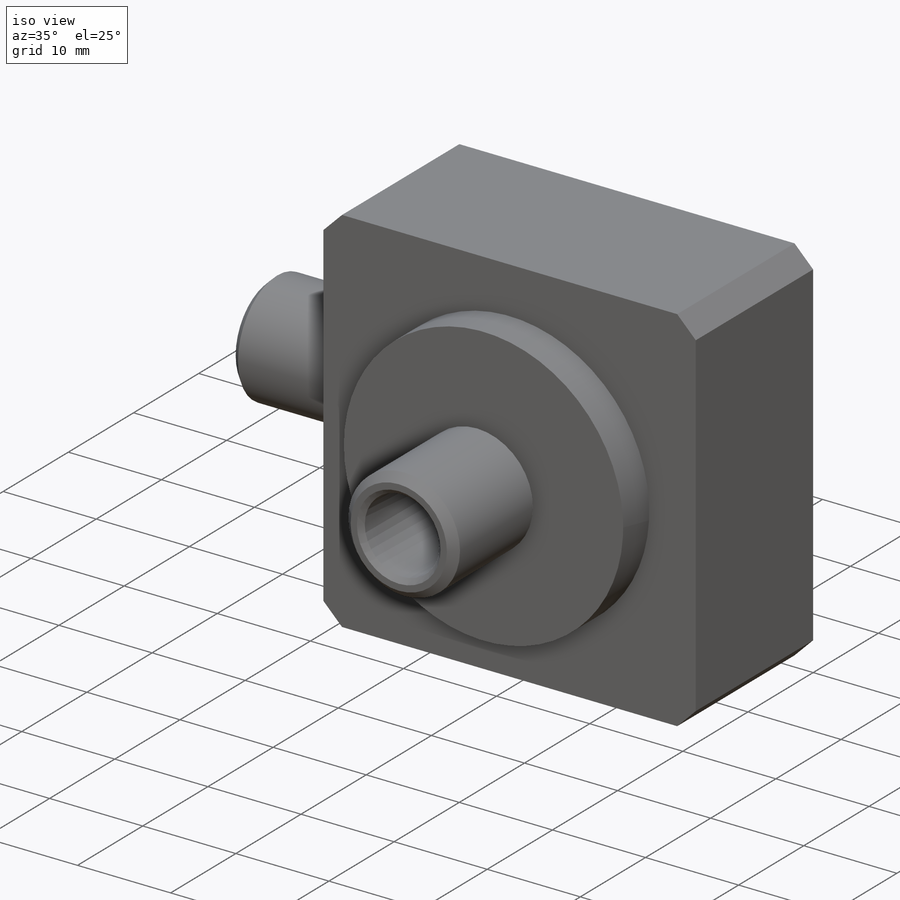
[diagram: iso view]
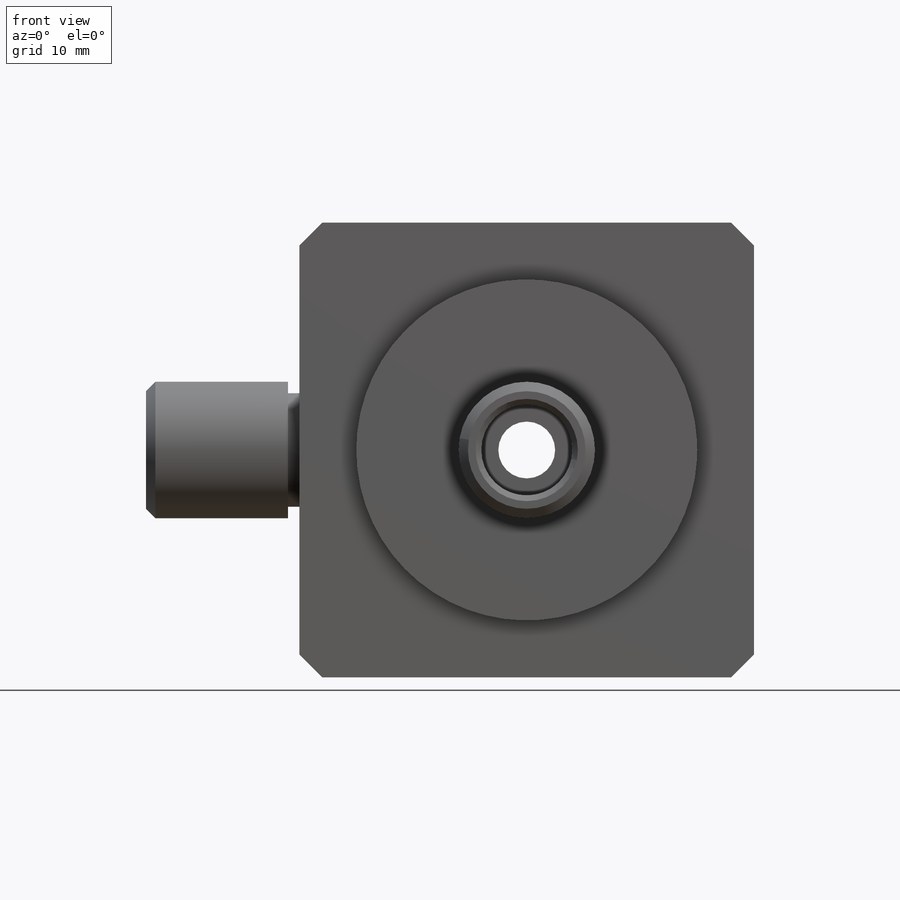
[diagram: front view]
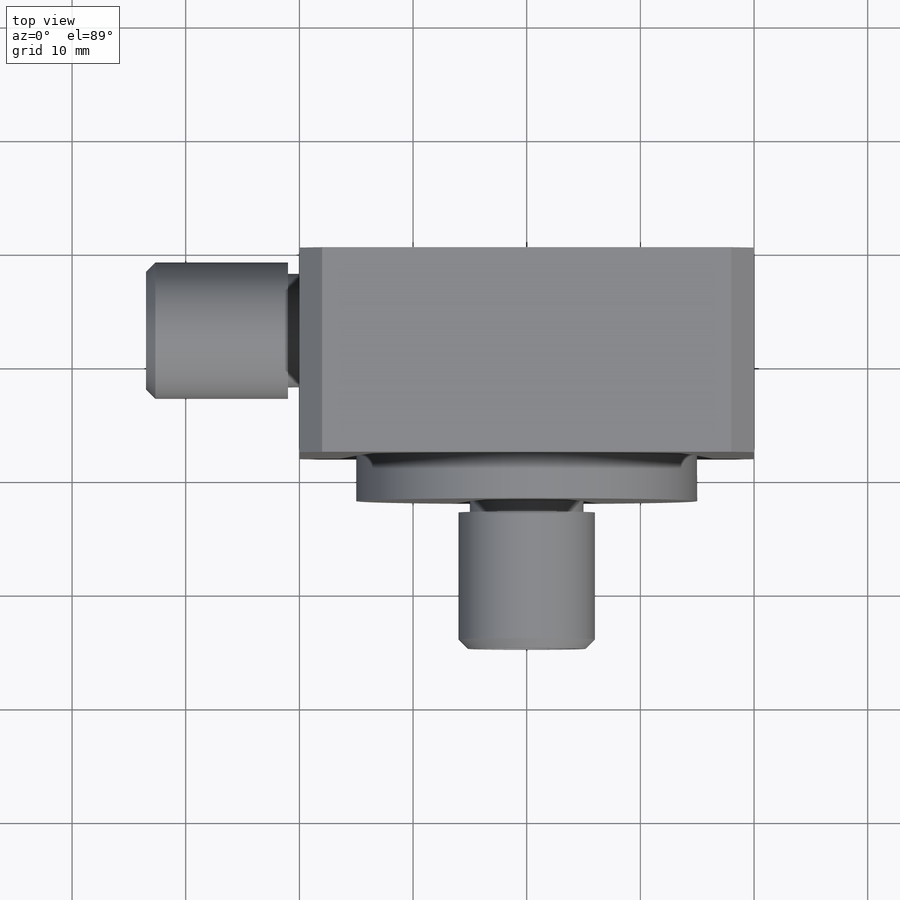
[diagram: top view]
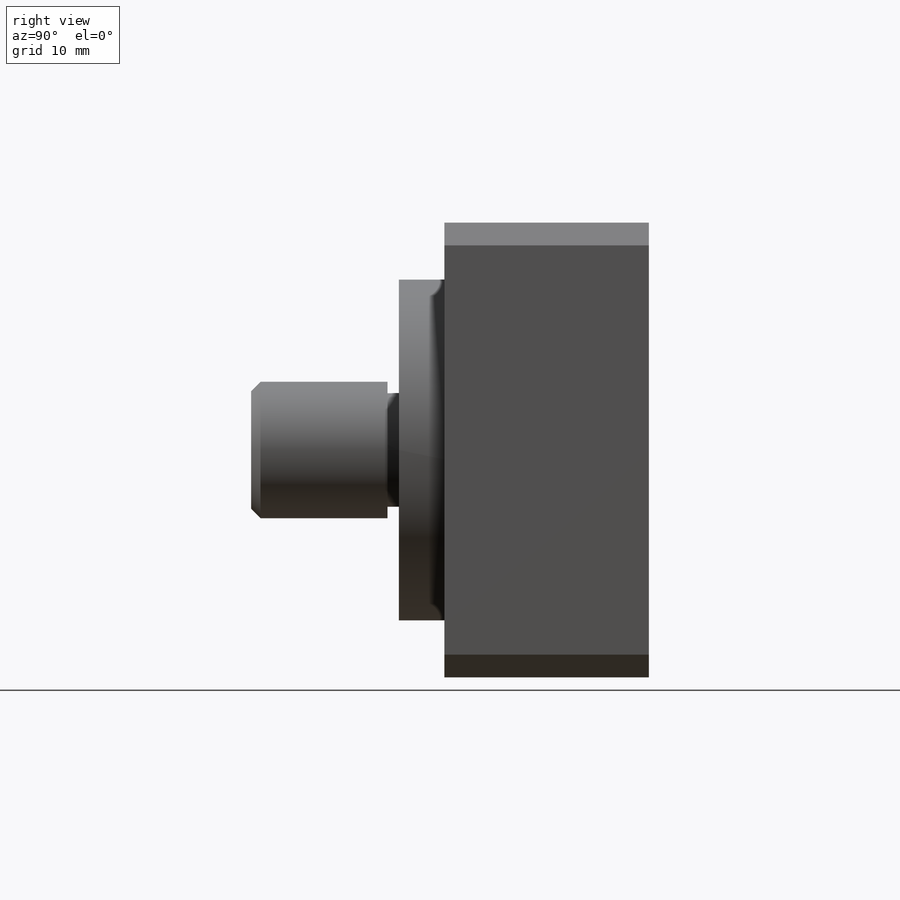
[diagram: right view]
SOLIDWORKS PART (.sldprt)
format: sldprt  version: not decoded by parser v0  size: 461,312 bytes
history: native  units: mm
features: sketch x12, extrude x6, cut_extrude x4, plane x3, chamfer x3, thread x2, cut_revolve x2, material x1 (+9 scaffold rows collapsed)
feature tree (42):
  scaffold x9  (default folders/planes/origin — collapsed)
  material  "Тефлон"
  plane  "Спереди"
  plane  "Сверху"
  plane  "Справа"
  sketch  "Эскиз1"  dims[D1=40.0mm D2=40.0mm]
  extrude  "Бобышка-Вытянуть1"  Depth=18mm
  sketch  "Эскиз2"  dims[D1=30.0mm]
  extrude  "Бобышка-Вытянуть2"  Depth=4mm
  sketch  "Эскиз3"  dims[D1=10.0mm]
  extrude  "Бобышка-Вытянуть3"  Depth=1mm
  sketch  "Эскиз4"  dims[D1=12.0mm]
  extrude  "Бобышка-Вытянуть4"  [1 undecoded]
  thread  "Условное изображение резьбы1"  Diameter=10.344mm  [1 undecoded]
  sketch  "Эскиз5"  dims[D1=10.0mm D2=11.0mm]
  extrude  "Бобышка-Вытянуть5"  Depth=1mm
  sketch  "Эскиз6"  dims[D1=12.0mm]
  extrude  "Бобышка-Вытянуть6"  [1 undecoded]
  thread  "Условное изображение резьбы2"  Diameter=10.344mm  [1 undecoded]
  sketch  "Эскиз7"  dims[c1.D1=8.0mm c1.D2=3.5mm c1.D3=~4.286492mm c2.D3=30.0deg c2.D4=11.0mm c2.D5=11.0mm]
  cut_revolve  "Вырез-Повернуть1"  Angle=360deg
  sketch  "Эскиз8"  dims[D1=5.0mm]
  cut_extrude  "Вырез-Вытянуть1"  [1 undecoded]
  sketch  "Эскиз9"  dims[D1=8.0mm]
  cut_extrude  "Вырез-Вытянуть2"  Depth=10mm
  sketch  "Эскиз10"  dims[D1=5.0mm]
  cut_extrude  "Вырез-Вытянуть3"  [1 undecoded]
  sketch  "Эскиз11"  dims[D1=8.0mm]
  cut_extrude  "Вырез-Вытянуть4"  Depth=10mm
  chamfer  "Фаска1"  Distance=0.5mm Angle=45deg
  chamfer  "Фаска2"  Distance=0.828mm Angle=45deg
  chamfer  "Фаска3"  Distance=2mm Angle=45deg
  sketch  "Эскиз12"  dims[D3=2.0mm D1=15.5mm D2=3.0mm D4=1.5mm]
  cut_revolve  "Вырез-Повернуть2"  Angle=360deg
decode coverage: 25 of 29 modeling features carry decoded parameters
note: ~ marks probable driven/reference dimensions
note: 6 parameter values undecoded
summary: no parameter record found for 4 features
note: suppression state not decoded; provenance and decode notes live in map.json
